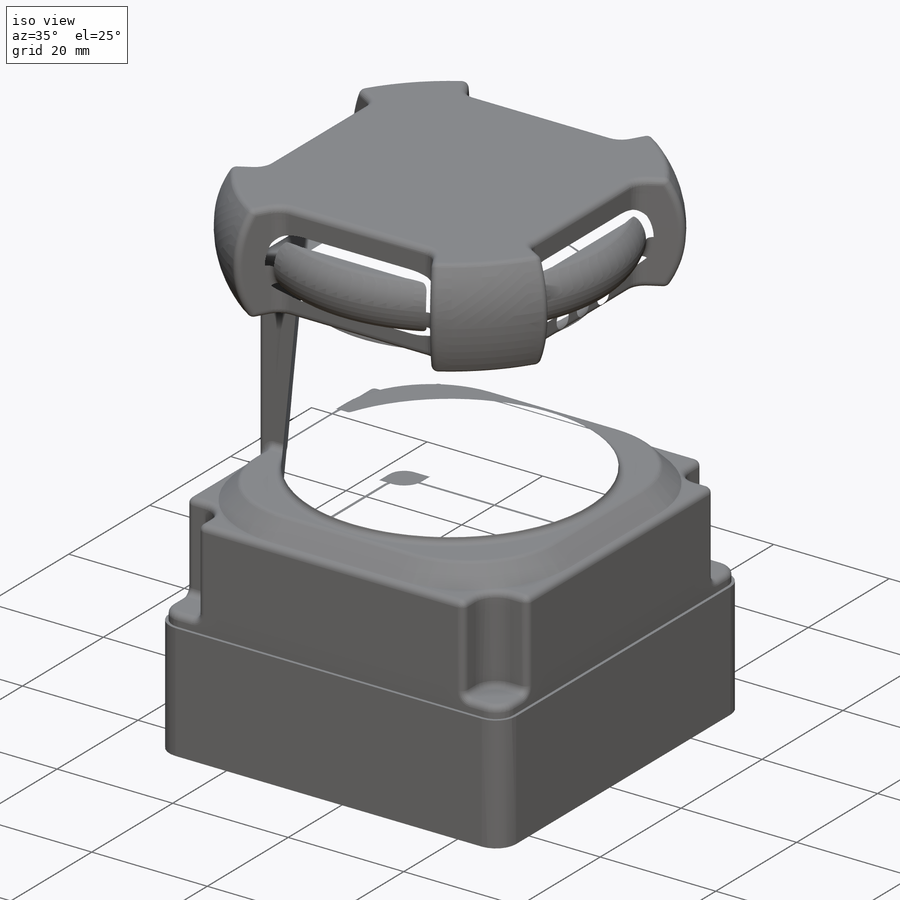
[diagram: iso view]
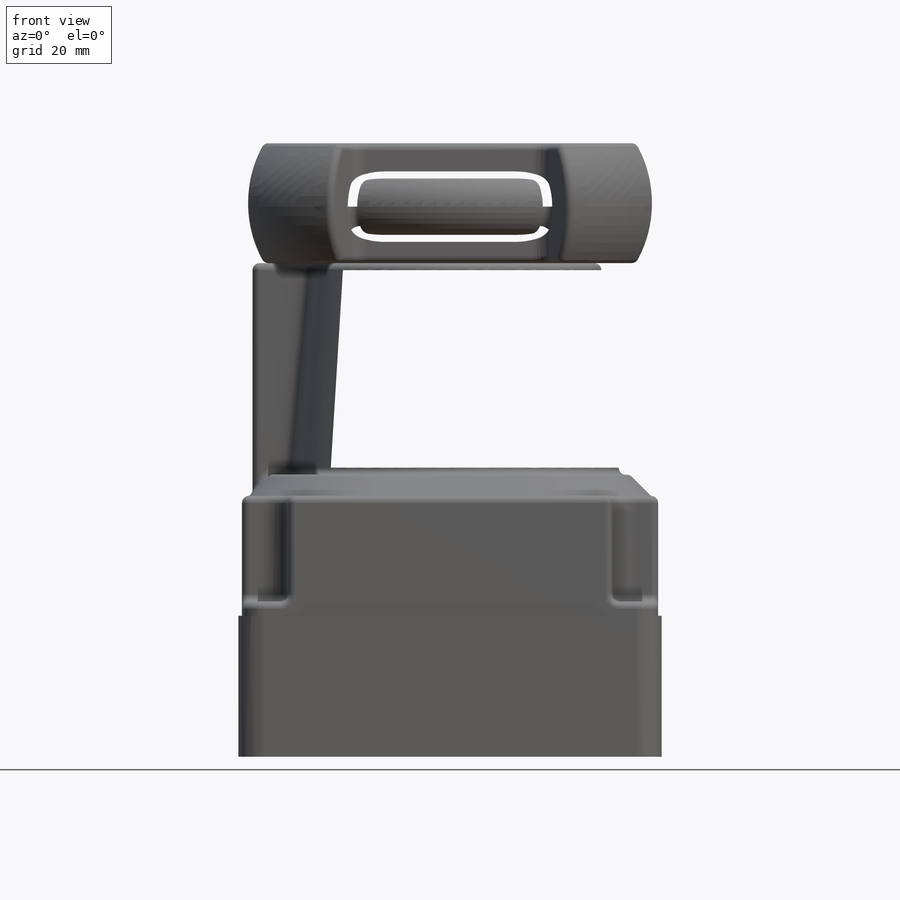
[diagram: front view]
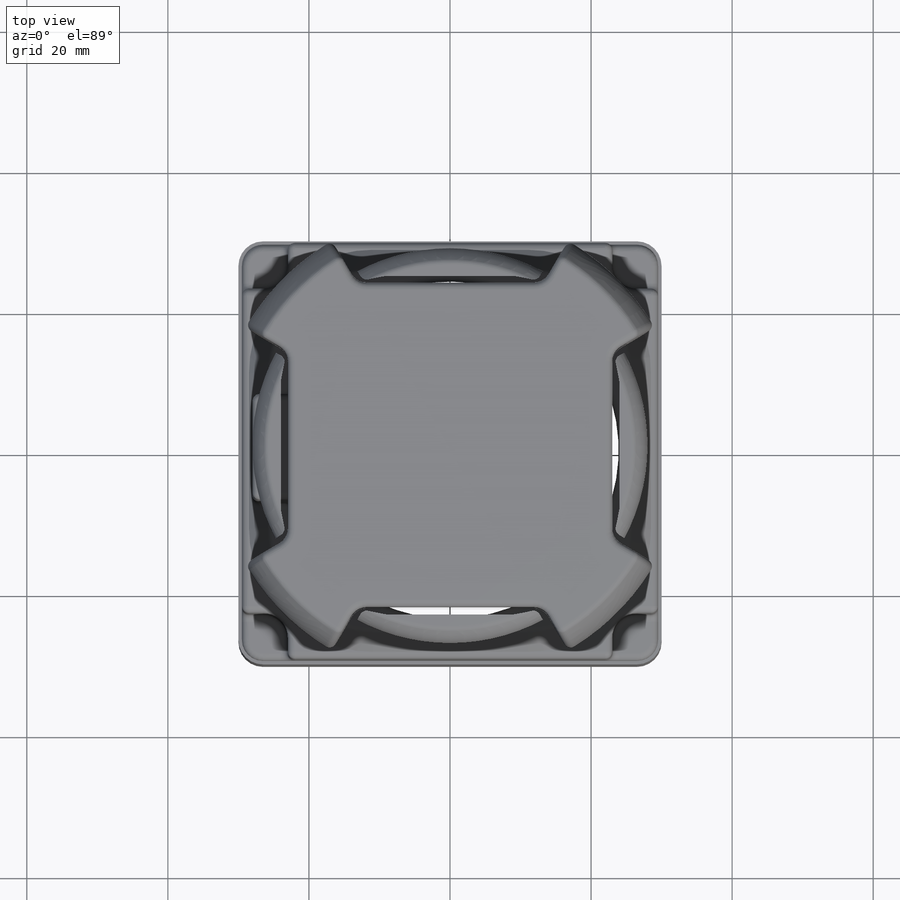
[diagram: top view]
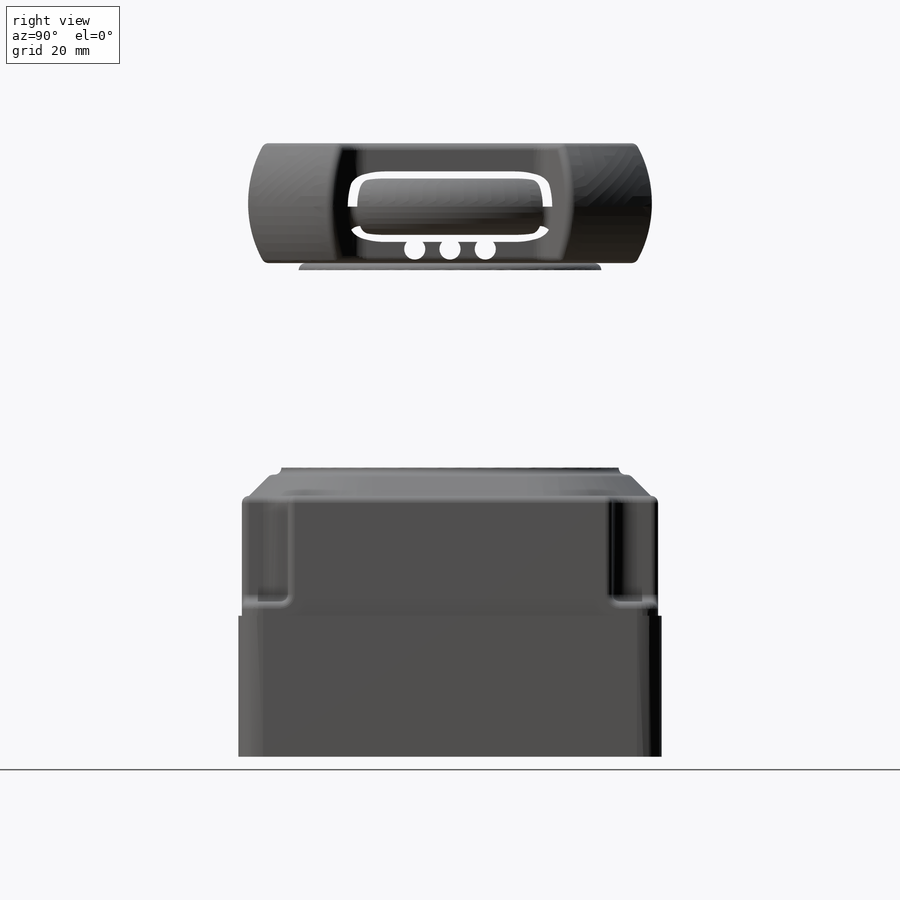
[diagram: right view]
SOLIDWORKS PART (.sldprt)
format: sldprt  version: not decoded by parser v0  size: 2,127,360 bytes
history: native  units: mm
features: sketch x20, extrude x7, fillet x6, thread x4, revolve x3, hole x2, material x1, sweep x1, cut_extrude x1, cut_revolve x1, pattern_linear x1, plane x1 (+13 scaffold rows collapsed)
feature tree (61):
  scaffold x13  (default folders/planes/origin — collapsed)
  material  "Material <not specified>"
  sketch  "Sketch1"  dims[D1=3.5mm D2=60.0mm]
  extrude  "Extrude1"  Depth=20mm
  sketch  "Sketch3"  dims[D1=0.5mm]
  extrude  "Extrude3"  Depth=2mm
  sketch  "Sketch2"  dims[D1=0.5mm]
  extrude  "Extrude2"  Depth=37mm
  fillet  "Fillet1"  Radius=1mm
  sketch  "Sketch4"  dims[D1=17.5mm D2=1.0mm D3=~6.579434mm]
  sketch  "Sketch7"  dims[c1.D1=~12.702318mm c2.D1=45.0deg c2.D2=40.0mm c2.D3=15.0mm c3.D1=5.5mm c4.D1=45.0deg]
  sweep  "Sweep1"
  sketch  "Sketch8"  dims[D1=48.0mm]
  extrude  "Extrude4"  Depth=30mm
  sketch  "Sketch9"  dims[D1=1.0mm D2=28.0mm D3=10.0mm]
  extrude  "Extrude5"  Depth=15mm
  fillet  "Fillet2"  Radius=1mm
  sketch  "Sketch11"  dims[c1.D2=~15.499461mm c1.D3=15.0mm c1.D1=87.0mm c2.D2=67.0mm]
  revolve  "Revolve1"  Angle=360deg
  sketch  "Sketch12"  dims[c1.D2=40.0mm c1.D1=~16.247991mm c2.D1=~66.859687deg c3.D1=46.0mm c3.D3=~13.565576mm c4.D3=60.0deg]
  cut_extrude  "Cut-Extrude1"  [1 undecoded]
  sketch  "Sketch13"  dims[c1.D1=~8.092412mm c1.D5=5.0mm c1.D6=1.0mm c2.D1=56.0mm c2.D2=8.0mm c2.D3=5.0mm c2.D4=4.0mm]
  revolve  "Revolve2"  Angle=360deg
  fillet  "Fillet3"  Radius=2.5mm
  fillet  "Fillet4"  Radius=1mm
  fillet  "Fillet6"  Radius=1mm
  fillet  "Fillet5"  Radius=1mm
  sketch  "Sketch14"
  sketch  "Sketch15"  dims[D2=28.0mm D3=41.0mm D1=0.1mm]
  cut_revolve  "Cut-Revolve1"  Angle=270deg
  sketch  "Sketch16"  dims[c1.D1=~6.63819mm c1.D2=~6.63819mm c1.D3=8.0mm c2.D1=9.0mm c2.D2=15.0mm]
  extrude  "Extrude7"  Depth=50mm
  hole  "M3 Tapped Hole1"  Diameter=2.5mm Depth=9.5mm
  sketch  "Sketch18"  dims[D1=53.0mm D2=53.0mm]
  sketch  "Sketch17"  dims[hole-wizard template sketch: 47 standard entries collapsed; hole parameters kept: c15.Tap Drill Depth=9.5mm c15.D3=~14.816244mm c15.Drill Angle=118.0deg]
  thread  "Hole Thread1"  Diameter=7mm  [1 undecoded]
  thread  "Hole Thread2"  Diameter=7mm  [1 undecoded]
  thread  "Hole Thread3"  Diameter=7mm  [1 undecoded]
  thread  "Hole Thread4"  Diameter=7mm  [1 undecoded]
  hole  "Ø3.0 (3) Diameter Hole1"  Diameter=3mm Depth=3mm
  sketch  "Sketch20"  dims[D1=54.0mm]
  sketch  "Sketch19"  dims[hole-wizard template sketch: 47 standard entries collapsed; hole parameters kept: c15.Hole Depth=3.0mm c15.D3=~14.816244mm c15.Drill Angle=118.0deg]
  sketch  "Sketch21"  dims[c1.D2=3.0mm c1.D1=2.0mm c1.D3=15.0mm c2.D1=2.0mm]
  revolve  "Revolve3"  Angle=360deg
  pattern_linear  "LPattern1"  Count1=2 Count2=2 Spacing1=5mm Spacing2=5mm
  sketch  "Sketch22"  dims[c1.D1=50.0mm c1.D2=250.0mm c1.D3=88.0mm c2.D3=90.0deg c2.D4=200.0mm c3.D4=180.0deg]
  extrude  "Extrude8"  Depth=1mm
  plane  "OpticalPlane"  Offset=55mm
  sketch  "3DSketch1"
decode coverage: 42 of 46 modeling features carry decoded parameters
note: ~ marks probable driven/reference dimensions
note: 5 parameter values undecoded
note: suppression state not decoded; provenance and decode notes live in map.json
